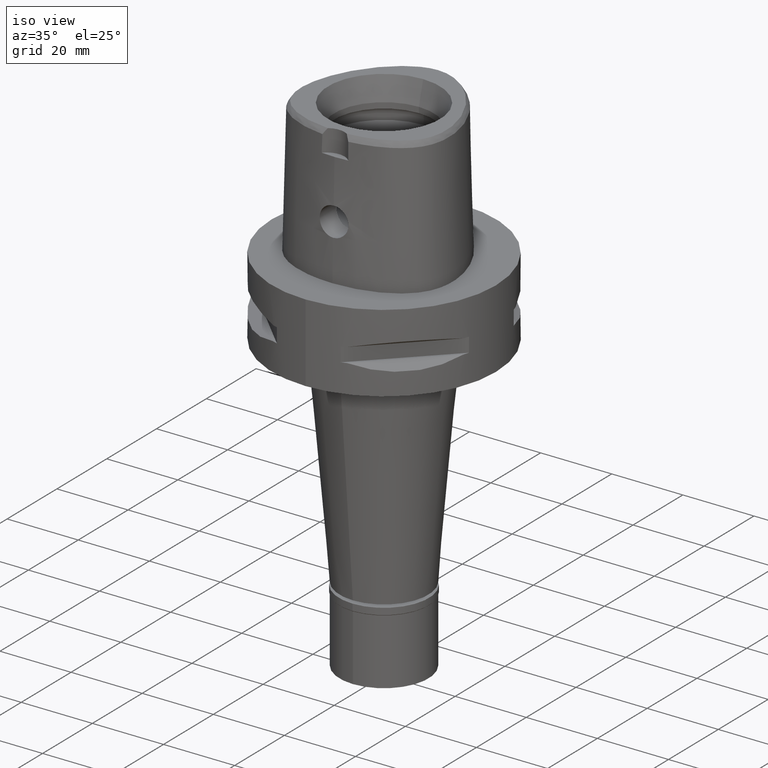
[diagram: clean part render]
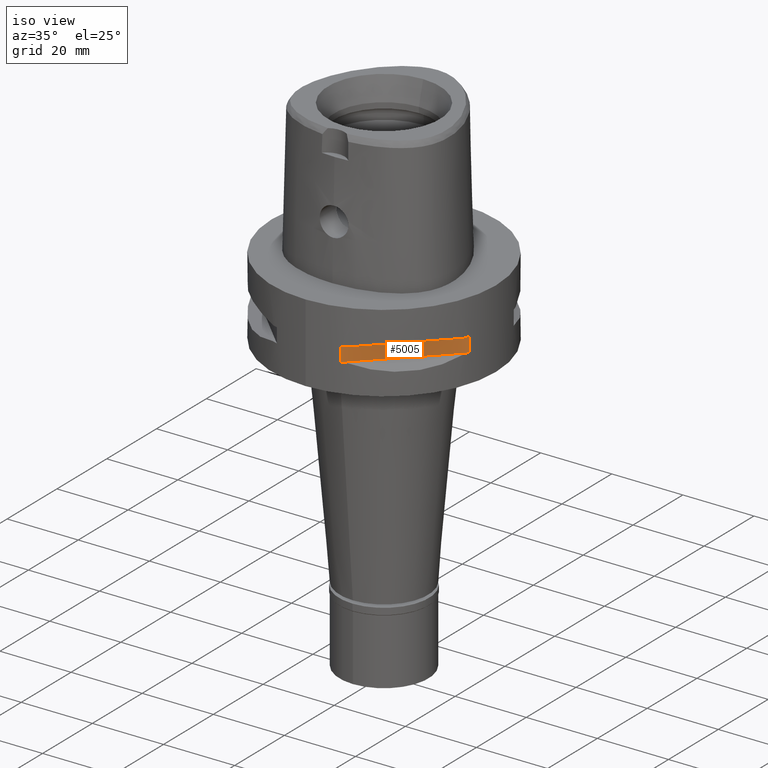
[diagram: same view with one face highlighted and labeled with its STEP entity id]
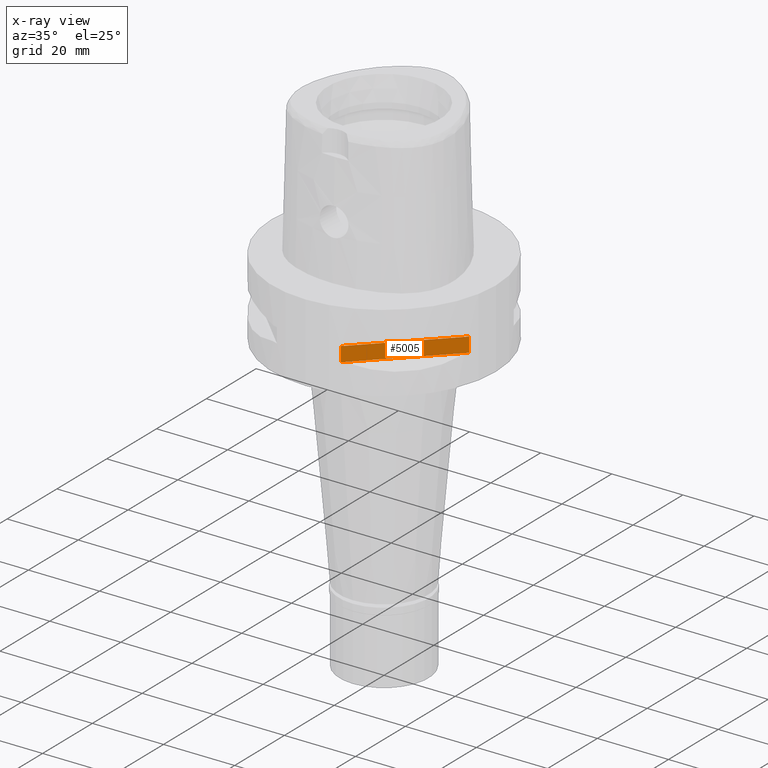
[diagram: x-ray of the same camera — body ghosted, the highlighted face saturated]
A machine part, iso view. The second image highlights one B-rep face of the part: STEP entity #5005.
The next image is the same camera in x-ray: the body ghosted, the highlighted face saturated — about 0% of this face is hidden behind the body in this view.
In plain terms, the highlighted planar face has unit normal (-0.7071, 0.7071, 0).
Its self-contained STEP definition (entity closure, byte-faithful):
#119 = LINE ( 'NONE', #3242, #4568 ) ;
#156 = VERTEX_POINT ( 'NONE', #3610 ) ;
#512 = EDGE_CURVE ( 'NONE', #156, #2200, #2163, .T. ) ;
#566 = PLANE ( 'NONE',  #3081 ) ;
#587 = DIRECTION ( 'NONE',  ( 0.0000000000000000000, 0.0000000000000000000, 1.000000000000000000 ) ) ;
#719 = EDGE_CURVE ( 'NONE', #2200, #1979, #883, .T. ) ;
#856 = DIRECTION ( 'NONE',  ( 0.7071067811865474617, 0.7071067811865474617, 0.0000000000000000000 ) ) ;
#883 = LINE ( 'NONE', #4056, #2756 ) ;
#1023 = LINE ( 'NONE', #2625, #4076 ) ;
#1212 = ORIENTED_EDGE ( 'NONE', *, *, #719, .T. ) ;
#1731 = DIRECTION ( 'NONE',  ( -0.7071067811865475727, 0.7071067811865475727, 0.0000000000000000000 ) ) ;
#1837 = CARTESIAN_POINT ( 'NONE',  ( 8.981198972017999438, -30.19251670572000279, -9.950000000000001066 ) ) ;
#1979 = VERTEX_POINT ( 'NONE', #4313 ) ;
#2163 = LINE ( 'NONE', #1837, #3160 ) ;
#2200 = VERTEX_POINT ( 'NONE', #2767 ) ;
#2362 = EDGE_CURVE ( 'NONE', #1979, #3748, #1023, .T. ) ;
#2494 = DIRECTION ( 'NONE',  ( 0.7071067811865474617, 0.7071067811865474617, 0.0000000000000000000 ) ) ;
#2524 = EDGE_CURVE ( 'NONE', #156, #3748, #119, .T. ) ;
#2625 = CARTESIAN_POINT ( 'NONE',  ( 30.19251670572000279, -8.981198972017999438, -14.05000000000000071 ) ) ;
#2756 = VECTOR ( 'NONE', #856, 1000.000000000000114 ) ;
#2767 = CARTESIAN_POINT ( 'NONE',  ( 8.981198972017999438, -30.19251670572000279, -14.05000000000000071 ) ) ;
#2967 = ORIENTED_EDGE ( 'NONE', *, *, #2524, .F. ) ;
#2982 = CARTESIAN_POINT ( 'NONE',  ( 33.72899346260000186, -5.444722215136000187, -9.950000000000001066 ) ) ;
#3016 = DIRECTION ( 'NONE',  ( 0.0000000000000000000, 0.0000000000000000000, -1.000000000000000000 ) ) ;
#3081 = AXIS2_PLACEMENT_3D ( 'NONE', #2982, #1731, #587 ) ;
#3160 = VECTOR ( 'NONE', #3016, 1000.000000000000000 ) ;
#3242 = CARTESIAN_POINT ( 'NONE',  ( 8.981198972017999438, -30.19251670572000279, -9.950000000000001066 ) ) ;
#3610 = CARTESIAN_POINT ( 'NONE',  ( 8.981198972019999616, -30.19251670572000279, -9.950000000000001066 ) ) ;
#3748 = VERTEX_POINT ( 'NONE', #4710 ) ;
#3767 = ORIENTED_EDGE ( 'NONE', *, *, #2362, .T. ) ;
#4056 = CARTESIAN_POINT ( 'NONE',  ( 8.981198972017999438, -30.19251670572000279, -14.05000000000000071 ) ) ;
#4076 = VECTOR ( 'NONE', #4115, 1000.000000000000000 ) ;
#4113 = EDGE_LOOP ( 'NONE', ( #2967, #4690, #1212, #3767 ) ) ;
#4115 = DIRECTION ( 'NONE',  ( 0.0000000000000000000, 0.0000000000000000000, 1.000000000000000000 ) ) ;
#4313 = CARTESIAN_POINT ( 'NONE',  ( 30.19251670572000279, -8.981198972019999616, -14.05000000000000071 ) ) ;
#4568 = VECTOR ( 'NONE', #2494, 1000.000000000000114 ) ;
#4690 = ORIENTED_EDGE ( 'NONE', *, *, #512, .T. ) ;
#4710 = CARTESIAN_POINT ( 'NONE',  ( 30.19251670572000279, -8.981198972017999438, -9.950000000000001066 ) ) ;
#4939 = FACE_OUTER_BOUND ( 'NONE', #4113, .T. ) ;
#5005 = ADVANCED_FACE ( 'NONE', ( #4939 ), #566, .F. ) ;